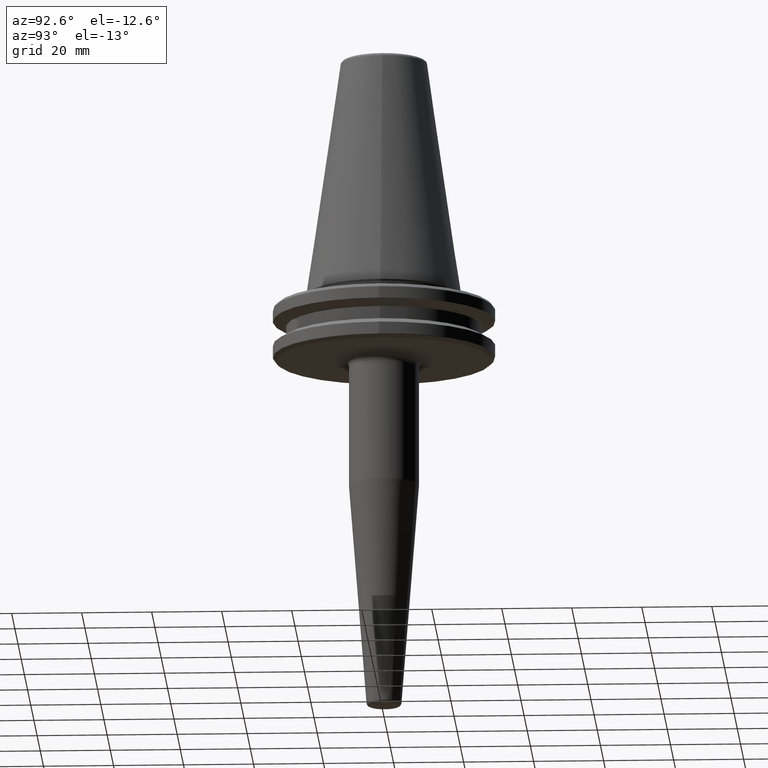
[diagram: clean part render]
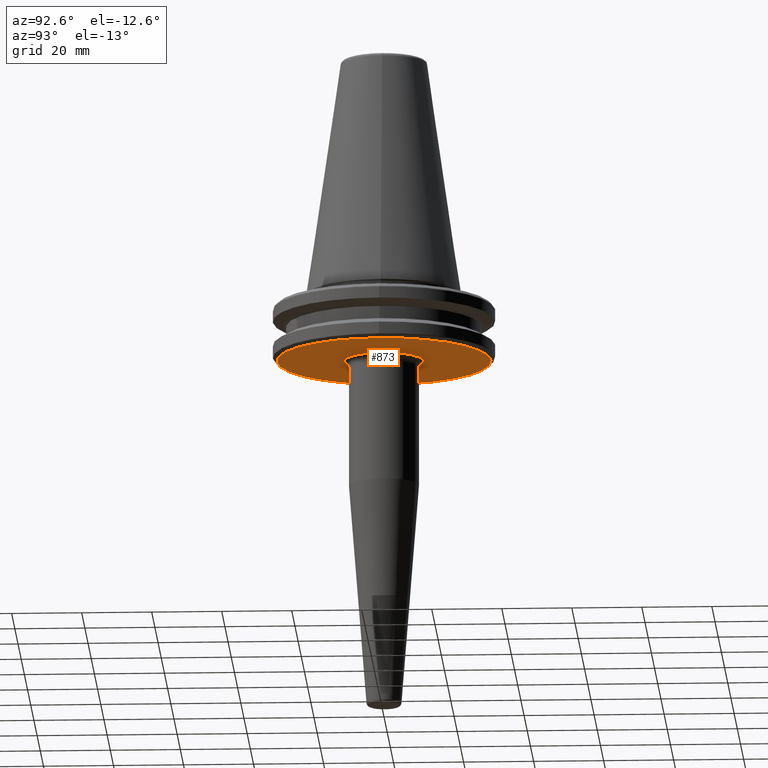
[diagram: same view with one face highlighted and labeled with its STEP entity id]
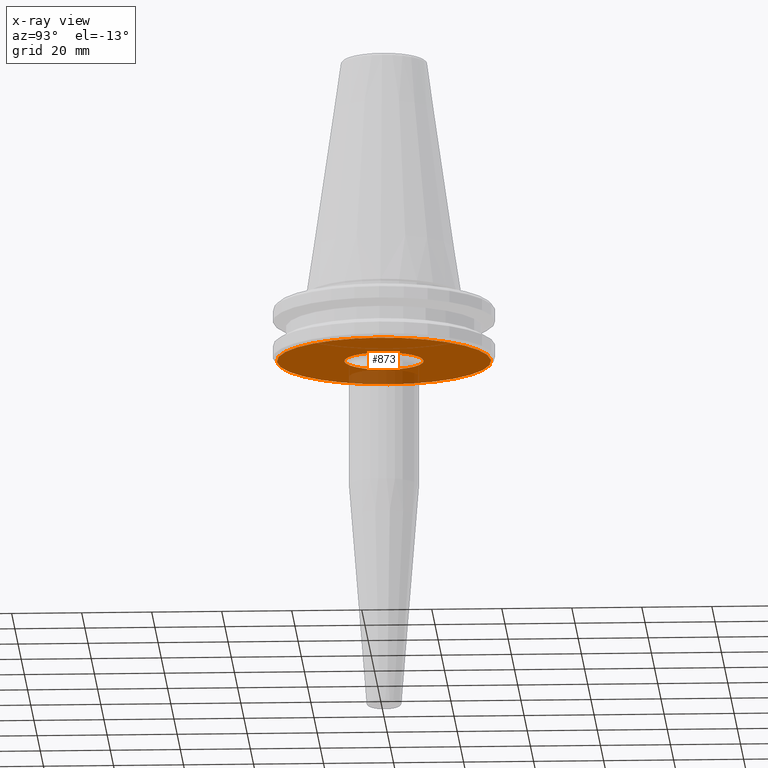
[diagram: x-ray of the same camera — body ghosted, the highlighted face saturated]
A machine part, auxiliary view. The second image highlights one B-rep face of the part: STEP entity #873.
The next image is the same camera in x-ray: the body ghosted, the highlighted face saturated — about 13% of this face is hidden behind the body in this view.
In plain terms, the highlighted planar face has unit normal (0, 0, -1).
Its self-contained STEP definition (entity closure, byte-faithful):
#2 = CARTESIAN_POINT ( 'NONE',  ( 0.0000000000000000000, 11.32553478956932800, -19.10000000000000500 ) ) ;
#48 = EDGE_LOOP ( 'NONE', ( #260, #859 ) ) ;
#75 = EDGE_CURVE ( 'NONE', #1198, #1110, #811, .T. ) ;
#109 = EDGE_CURVE ( 'NONE', #1110, #1198, #767, .T. ) ;
#146 = DIRECTION ( 'NONE',  ( 0.0000000000000000000, 0.0000000000000000000, -1.000000000000000000 ) ) ;
#157 = FACE_BOUND ( 'NONE', #1222, .T. ) ;
#170 = EDGE_CURVE ( 'NONE', #693, #183, #289, .T. ) ;
#183 = VERTEX_POINT ( 'NONE', #346 ) ;
#236 = EDGE_CURVE ( 'NONE', #183, #693, #1227, .T. ) ;
#260 = ORIENTED_EDGE ( 'NONE', *, *, #75, .F. ) ;
#272 = AXIS2_PLACEMENT_3D ( 'NONE', #1076, #879, #689 ) ;
#282 = AXIS2_PLACEMENT_3D ( 'NONE', #1208, #146, #352 ) ;
#289 = CIRCLE ( 'NONE', #282, 11.32553478956935100 ) ;
#305 = DIRECTION ( 'NONE',  ( 1.000000000000000000, 0.0000000000000000000, 0.0000000000000000000 ) ) ;
#331 = DIRECTION ( 'NONE',  ( 1.000000000000000000, 0.0000000000000000000, 0.0000000000000000000 ) ) ;
#346 = CARTESIAN_POINT ( 'NONE',  ( 1.386977992867810200E-015, -11.32553478956937300, -19.10000000000000500 ) ) ;
#352 = DIRECTION ( 'NONE',  ( 1.000000000000000000, 0.0000000000000000000, 0.0000000000000000000 ) ) ;
#440 = DIRECTION ( 'NONE',  ( -0.0000000000000000000, -0.0000000000000000000, 1.000000000000000000 ) ) ;
#532 = CARTESIAN_POINT ( 'NONE',  ( 0.0000000000000000000, 0.0000000000000000000, -19.10000000000000500 ) ) ;
#595 = AXIS2_PLACEMENT_3D ( 'NONE', #1186, #799, #305 ) ;
#601 = PLANE ( 'NONE',  #272 ) ;
#617 = CARTESIAN_POINT ( 'NONE',  ( 30.58431457505076500, 0.0000000000000000000, -19.10000000000000500 ) ) ;
#689 = DIRECTION ( 'NONE',  ( -1.000000000000000000, 0.0000000000000000000, -0.0000000000000000000 ) ) ;
#690 = ORIENTED_EDGE ( 'NONE', *, *, #236, .F. ) ;
#693 = VERTEX_POINT ( 'NONE', #2 ) ;
#719 = DIRECTION ( 'NONE',  ( 1.000000000000000000, 0.0000000000000000000, 0.0000000000000000000 ) ) ;
#742 = ORIENTED_EDGE ( 'NONE', *, *, #170, .F. ) ;
#767 = CIRCLE ( 'NONE', #927, 30.58431457505076500 ) ;
#799 = DIRECTION ( 'NONE',  ( 0.0000000000000000000, 0.0000000000000000000, -1.000000000000000000 ) ) ;
#811 = CIRCLE ( 'NONE', #1088, 30.58431457505076500 ) ;
#820 = DIRECTION ( 'NONE',  ( -0.0000000000000000000, -0.0000000000000000000, 1.000000000000000000 ) ) ;
#859 = ORIENTED_EDGE ( 'NONE', *, *, #109, .F. ) ;
#873 = ADVANCED_FACE ( 'NONE', ( #157, #900 ), #601, .T. ) ;
#879 = DIRECTION ( 'NONE',  ( 0.0000000000000000000, 0.0000000000000000000, -1.000000000000000000 ) ) ;
#893 = CARTESIAN_POINT ( 'NONE',  ( -30.58431457505076500, 3.762817415969875600E-015, -19.10000000000000500 ) ) ;
#900 = FACE_OUTER_BOUND ( 'NONE', #48, .T. ) ;
#927 = AXIS2_PLACEMENT_3D ( 'NONE', #532, #820, #719 ) ;
#1006 = CARTESIAN_POINT ( 'NONE',  ( 0.0000000000000000000, 0.0000000000000000000, -19.10000000000000500 ) ) ;
#1076 = CARTESIAN_POINT ( 'NONE',  ( 0.0000000000000000000, 2.166680460328873200E-015, -19.10000000000000500 ) ) ;
#1088 = AXIS2_PLACEMENT_3D ( 'NONE', #1006, #440, #331 ) ;
#1110 = VERTEX_POINT ( 'NONE', #893 ) ;
#1186 = CARTESIAN_POINT ( 'NONE',  ( 0.0000000000000000000, -1.734723475976807100E-014, -19.10000000000000500 ) ) ;
#1198 = VERTEX_POINT ( 'NONE', #617 ) ;
#1208 = CARTESIAN_POINT ( 'NONE',  ( 0.0000000000000000000, -1.734723475976807100E-014, -19.10000000000000500 ) ) ;
#1222 = EDGE_LOOP ( 'NONE', ( #742, #690 ) ) ;
#1227 = CIRCLE ( 'NONE', #595, 11.32553478956935100 ) ;